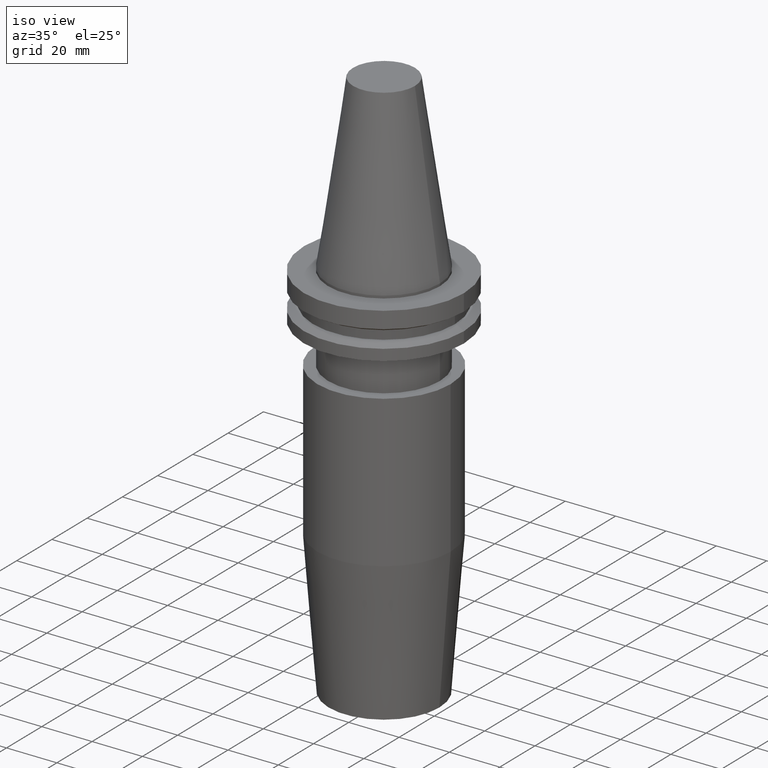
[diagram: clean part render]
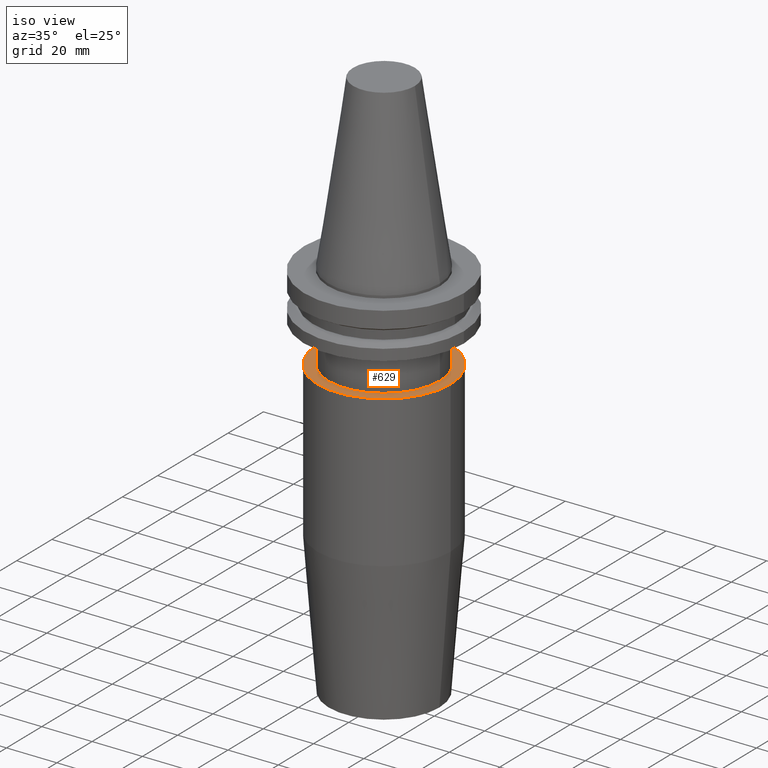
[diagram: same view with one face highlighted and labeled with its STEP entity id]
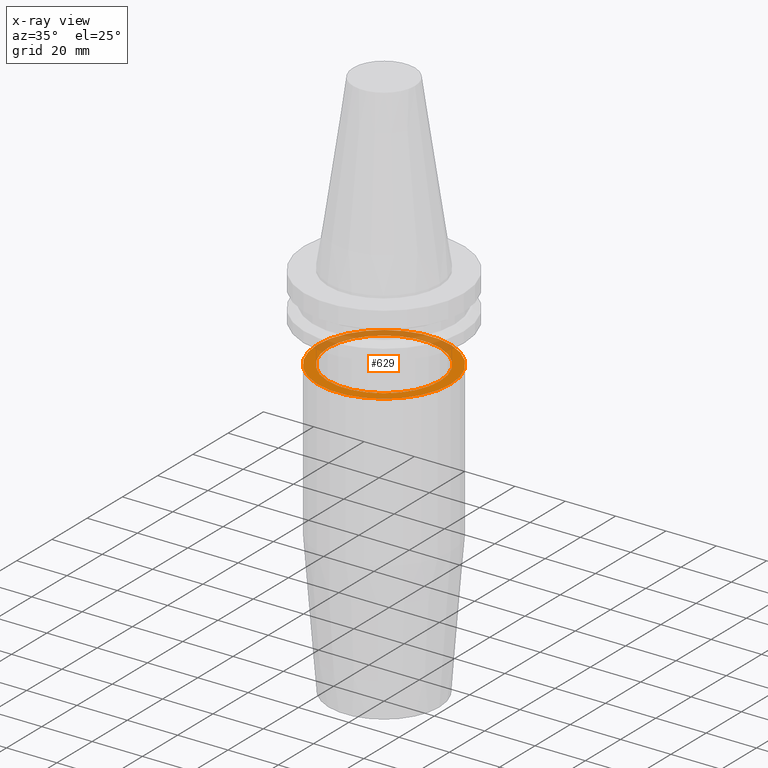
[diagram: x-ray of the same camera — body ghosted, the highlighted face saturated]
A machine part, iso view. The second image highlights one B-rep face of the part: STEP entity #629.
The next image is the same camera in x-ray: the body ghosted, the highlighted face saturated — about 35% of this face is hidden behind the body in this view.
In plain terms, the highlighted planar face has unit normal (0, 0, -1).
Its self-contained STEP definition (entity closure, byte-faithful):
#16 = EDGE_LOOP ( 'NONE', ( #574, #855 ) ) ;
#51 = FACE_OUTER_BOUND ( 'NONE', #200, .T. ) ;
#67 = CIRCLE ( 'NONE', #183, 26.50000000000000000 ) ;
#72 = CARTESIAN_POINT ( 'NONE',  ( 26.50000000000000000, 0.000000000000000000, -35.04999999999999716 ) ) ;
#84 = ORIENTED_EDGE ( 'NONE', *, *, #622, .T. ) ;
#96 = EDGE_CURVE ( 'NONE', #830, #104, #660, .T. ) ;
#104 = VERTEX_POINT ( 'NONE', #72 ) ;
#131 = CARTESIAN_POINT ( 'NONE',  ( 0.000000000000000000, 0.000000000000000000, -35.04999999999999716 ) ) ;
#136 = AXIS2_PLACEMENT_3D ( 'NONE', #456, #666, #335 ) ;
#183 = AXIS2_PLACEMENT_3D ( 'NONE', #843, #521, #654 ) ;
#186 = AXIS2_PLACEMENT_3D ( 'NONE', #549, #679, #608 ) ;
#197 = DIRECTION ( 'NONE',  ( 0.000000000000000000, 0.000000000000000000, -1.000000000000000000 ) ) ;
#199 = AXIS2_PLACEMENT_3D ( 'NONE', #214, #407, #738 ) ;
#200 = EDGE_LOOP ( 'NONE', ( #84, #207 ) ) ;
#207 = ORIENTED_EDGE ( 'NONE', *, *, #96, .T. ) ;
#214 = CARTESIAN_POINT ( 'NONE',  ( 0.000000000000000000, 0.000000000000000000, -35.04999999999999716 ) ) ;
#227 = VERTEX_POINT ( 'NONE', #262 ) ;
#252 = DIRECTION ( 'NONE',  ( -1.000000000000000000, 0.000000000000000000, -0.000000000000000000 ) ) ;
#262 = CARTESIAN_POINT ( 'NONE',  ( 22.22499999999999787, 0.000000000000000000, -35.04999999999999716 ) ) ;
#271 = PLANE ( 'NONE',  #661 ) ;
#335 = DIRECTION ( 'NONE',  ( 1.000000000000000000, 0.000000000000000000, 0.000000000000000000 ) ) ;
#407 = DIRECTION ( 'NONE',  ( -0.000000000000000000, -0.000000000000000000, 1.000000000000000000 ) ) ;
#417 = CIRCLE ( 'NONE', #186, 22.22499999999999787 ) ;
#456 = CARTESIAN_POINT ( 'NONE',  ( 0.000000000000000000, 0.000000000000000000, -35.04999999999999716 ) ) ;
#492 = CARTESIAN_POINT ( 'NONE',  ( -22.22499999999999787, 2.721777511104992454E-15, -35.04999999999999716 ) ) ;
#521 = DIRECTION ( 'NONE',  ( -0.000000000000000000, -0.000000000000000000, 1.000000000000000000 ) ) ;
#529 = CIRCLE ( 'NONE', #199, 22.22499999999999787 ) ;
#549 = CARTESIAN_POINT ( 'NONE',  ( 0.000000000000000000, 0.000000000000000000, -35.04999999999999716 ) ) ;
#557 = VERTEX_POINT ( 'NONE', #492 ) ;
#574 = ORIENTED_EDGE ( 'NONE', *, *, #740, .F. ) ;
#608 = DIRECTION ( 'NONE',  ( 1.000000000000000000, 0.000000000000000000, 0.000000000000000000 ) ) ;
#622 = EDGE_CURVE ( 'NONE', #104, #830, #67, .T. ) ;
#629 = ADVANCED_FACE ( 'NONE', ( #650, #51 ), #271, .F. ) ;
#650 = FACE_BOUND ( 'NONE', #16, .T. ) ;
#654 = DIRECTION ( 'NONE',  ( 1.000000000000000000, 0.000000000000000000, 0.000000000000000000 ) ) ;
#660 = CIRCLE ( 'NONE', #136, 26.50000000000000000 ) ;
#661 = AXIS2_PLACEMENT_3D ( 'NONE', #131, #197, #252 ) ;
#665 = CARTESIAN_POINT ( 'NONE',  ( -26.50000000000000000, 3.245314017740485765E-15, -35.04999999999999716 ) ) ;
#666 = DIRECTION ( 'NONE',  ( -0.000000000000000000, -0.000000000000000000, 1.000000000000000000 ) ) ;
#679 = DIRECTION ( 'NONE',  ( -0.000000000000000000, -0.000000000000000000, 1.000000000000000000 ) ) ;
#738 = DIRECTION ( 'NONE',  ( 1.000000000000000000, 0.000000000000000000, 0.000000000000000000 ) ) ;
#740 = EDGE_CURVE ( 'NONE', #227, #557, #529, .T. ) ;
#762 = EDGE_CURVE ( 'NONE', #557, #227, #417, .T. ) ;
#830 = VERTEX_POINT ( 'NONE', #665 ) ;
#843 = CARTESIAN_POINT ( 'NONE',  ( 0.000000000000000000, 0.000000000000000000, -35.04999999999999716 ) ) ;
#855 = ORIENTED_EDGE ( 'NONE', *, *, #762, .F. ) ;